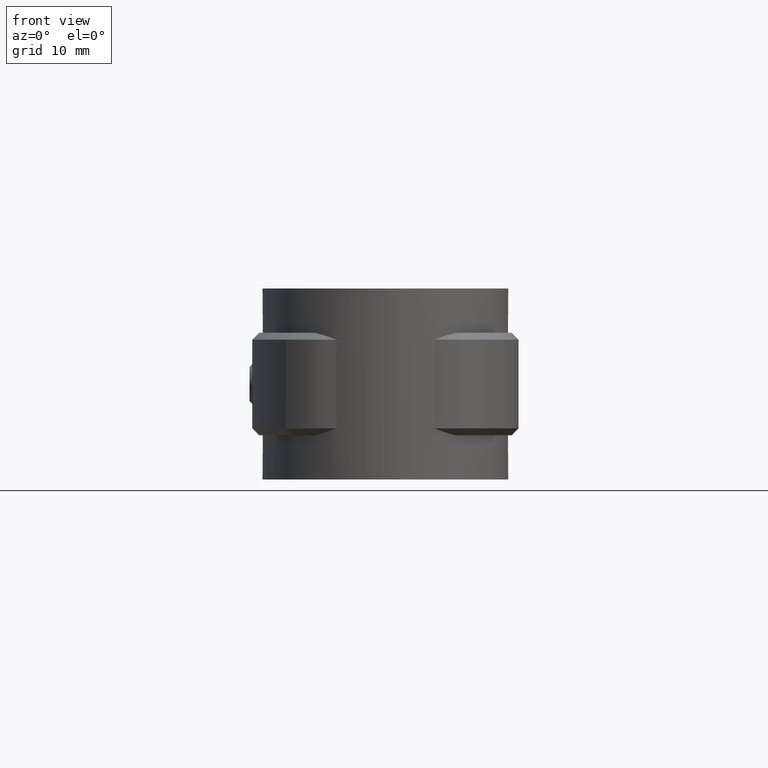
[diagram: clean part render]
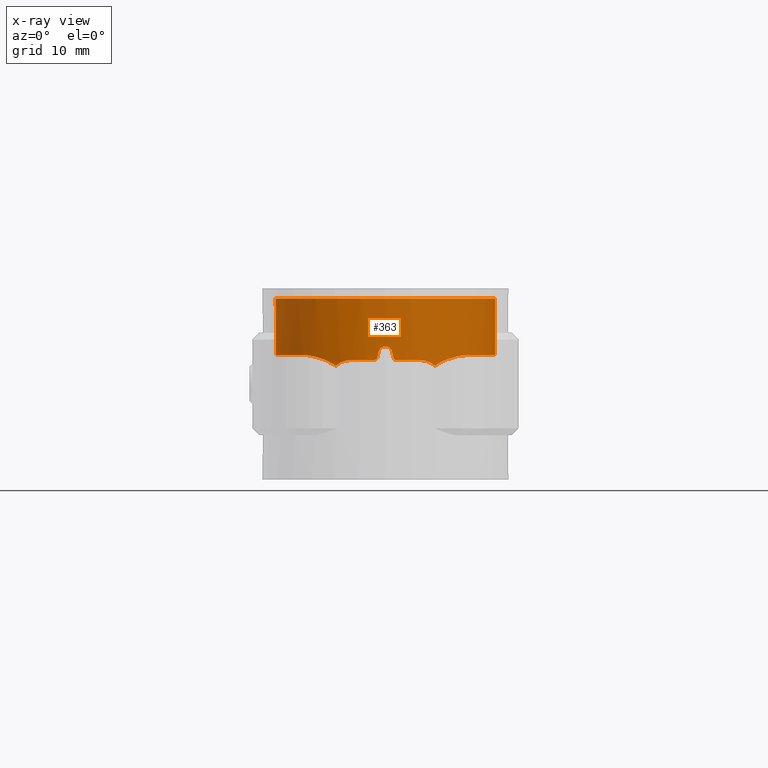
[diagram: x-ray — body ghosted, one internal face saturated and labeled with its STEP entity id]
A machine part, front view, then the same camera in x-ray: the body is ghosted and one INTERNAL B-rep face — a face not visible from any outside direction — is saturated and labeled: STEP entity #363.
In plain terms, the highlighted cylindrical surface (partial cylindrical patch) has radius 16.09 mm, axis along (0, 0, 1).
Its self-contained STEP definition (entity closure, byte-faithful):
#363 = ADVANCED_FACE( '', ( #689 ), #690, .T. );
#689 = FACE_OUTER_BOUND( '', #1386, .T. );
#690 = CYLINDRICAL_SURFACE( '', #1387, 16.0900000000000 );
#1386 = EDGE_LOOP( '', ( #2655, #2656, #2657, #2658, #2659, #2660, #2661, #2662, #2663, #2664, #2665, #2666, #2667, #2668, #2669, #2670 ) );
#1387 = AXIS2_PLACEMENT_3D( '', #2671, #2672, #2673 );
#2655 = ORIENTED_EDGE( '', *, *, #6454, .F. );
#2656 = ORIENTED_EDGE( '', *, *, #6455, .F. );
#2657 = ORIENTED_EDGE( '', *, *, #6456, .F. );
#2658 = ORIENTED_EDGE( '', *, *, #6457, .F. );
#2659 = ORIENTED_EDGE( '', *, *, #6458, .F. );
#2660 = ORIENTED_EDGE( '', *, *, #6459, .T. );
#2661 = ORIENTED_EDGE( '', *, *, #6460, .F. );
#2662 = ORIENTED_EDGE( '', *, *, #6461, .F. );
#2663 = ORIENTED_EDGE( '', *, *, #6462, .F. );
#2664 = ORIENTED_EDGE( '', *, *, #6463, .F. );
#2665 = ORIENTED_EDGE( '', *, *, #6464, .F. );
#2666 = ORIENTED_EDGE( '', *, *, #6465, .F. );
#2667 = ORIENTED_EDGE( '', *, *, #6466, .F. );
#2668 = ORIENTED_EDGE( '', *, *, #6467, .F. );
#2669 = ORIENTED_EDGE( '', *, *, #6468, .F. );
#2670 = ORIENTED_EDGE( '', *, *, #6469, .F. );
#2671 = CARTESIAN_POINT( '', ( 0.000000000000000, 0.000000000000000, 0.000000000000000 ) );
#2672 = DIRECTION( '', ( 0.000000000000000, 0.000000000000000, 1.00000000000000 ) );
#2673 = DIRECTION( '', ( 1.00000000000000, -6.12303176911189E-017, 0.000000000000000 ) );
#6454 = EDGE_CURVE( '', #7363, #7364, #7365, .T. );
#6455 = EDGE_CURVE( '', #7366, #7363, #7367, .T. );
#6456 = EDGE_CURVE( '', #7368, #7366, #7369, .T. );
#6457 = EDGE_CURVE( '', #7370, #7368, #7371, .T. );
#6458 = EDGE_CURVE( '', #7372, #7370, #7373, .F. );
#6459 = EDGE_CURVE( '', #7372, #7374, #7375, .T. );
#6460 = EDGE_CURVE( '', #7376, #7374, #7377, .T. );
#6461 = EDGE_CURVE( '', #7378, #7376, #7379, .T. );
#6462 = EDGE_CURVE( '', #7380, #7378, #7381, .T. );
#6463 = EDGE_CURVE( '', #7382, #7380, #7383, .T. );
#6464 = EDGE_CURVE( '', #7384, #7382, #7385, .T. );
#6465 = EDGE_CURVE( '', #7386, #7384, #7387, .T. );
#6466 = EDGE_CURVE( '', #7388, #7386, #7389, .T. );
#6467 = EDGE_CURVE( '', #7390, #7388, #7391, .T. );
#6468 = EDGE_CURVE( '', #7392, #7390, #7393, .T. );
#6469 = EDGE_CURVE( '', #7364, #7392, #7394, .T. );
#7363 = VERTEX_POINT( '', #8877 );
#7364 = VERTEX_POINT( '', #8878 );
#7365 = B_SPLINE_CURVE_WITH_KNOTS( '', 3, ( #8879, #8880, #8881, #8882, #8883, #8884, #8885, #8886, #8887, #8888 ), .UNSPECIFIED., .F., .F., ( 4, 2, 2, 2, 4 ), ( 0.00883853976691618, 0.00949434330834330, 0.0101501468497704, 0.0108059503911976, 0.0114617539326247 ), .UNSPECIFIED. );
#7366 = VERTEX_POINT( '', #8889 );
#7367 = B_SPLINE_CURVE_WITH_KNOTS( '', 3, ( #8890, #8891, #8892, #8893, #8894, #8895, #8896, #8897, #8898, #8899, #8900, #8901 ), .UNSPECIFIED., .F., .F., ( 4, 2, 2, 2, 2, 4 ), ( 4.66016712128000E-005, 0.00322408802680564, 0.00401845961570385, 0.00481283120460207, 0.00560720279350028, 0.00640157438239849 ), .UNSPECIFIED. );
#7368 = VERTEX_POINT( '', #8902 );
#7369 = B_SPLINE_CURVE_WITH_KNOTS( '', 3, ( #8903, #8904, #8905, #8906, #8907, #8908, #8909, #8910, #8911, #8912, #8913, #8914, #8915, #8916, #8917, #8918, #8919, #8920, #8921, #8922, #8923, #8924, #8925, #8926, #8927, #8928, #8929, #8930, #8931, #8932, #8933, #8934, #8935, #8936 ), .UNSPECIFIED., .F., .F., ( 4, 2, 2, 2, 2, 2, 2, 2, 2, 2, 2, 2, 2, 2, 2, 2, 4 ), ( 0.000000000000000, 0.00382526138376945, 0.00478157672971181, 0.00573789207565417, 0.00765052276753890, 0.00956315345942362, 0.0105194688053660, 0.0114757841513083, 0.0153010455350778, 0.0172136762269625, 0.0191263069188472, 0.0210389376107320, 0.0219952529566743, 0.0229515683026167, 0.0267768296863861, 0.0286894603782708, 0.0306020910701556 ), .UNSPECIFIED. );
#7370 = VERTEX_POINT( '', #8937 );
#7371 = LINE( '', #8938, #8939 );
#7372 = VERTEX_POINT( '', #8940 );
#7373 = CIRCLE( '', #8941, 16.0900000000000 );
#7374 = VERTEX_POINT( '', #8942 );
#7375 = LINE( '', #8943, #8944 );
#7376 = VERTEX_POINT( '', #8945 );
#7377 = B_SPLINE_CURVE_WITH_KNOTS( '', 3, ( #8946, #8947, #8948, #8949, #8950, #8951, #8952, #8953, #8954, #8955, #8956, #8957, #8958, #8959, #8960, #8961, #8962, #8963, #8964, #8965, #8966, #8967, #8968, #8969, #8970, #8971, #8972, #8973, #8974, #8975, #8976, #8977 ), .UNSPECIFIED., .F., .F., ( 4, 2, 2, 2, 2, 2, 2, 2, 2, 2, 2, 2, 2, 2, 2, 4 ), ( 0.000186769053910505, 0.00401259568005771, 0.00496905233659452, 0.00592550899313132, 0.00783842230620493, 0.00975133561927853, 0.0116642489323521, 0.0154900755584993, 0.0164465322150361, 0.0174029888715730, 0.0193159021846466, 0.0212288154977202, 0.0221852721542570, 0.0231417288107938, 0.0269675554369410, 0.0307933820630882 ), .UNSPECIFIED. );
#7378 = VERTEX_POINT( '', #8978 );
#7379 = B_SPLINE_CURVE_WITH_KNOTS( '', 3, ( #8979, #8980, #8981, #8982, #8983, #8984, #8985, #8986, #8987, #8988 ), .UNSPECIFIED., .F., .F., ( 4, 2, 2, 2, 4 ), ( 0.0130632303967494, 0.0146516333893562, 0.0162400363819630, 0.0178284393745698, 0.0194168423671766 ), .UNSPECIFIED. );
#7380 = VERTEX_POINT( '', #8989 );
#7381 = B_SPLINE_CURVE_WITH_KNOTS( '', 3, ( #8990, #8991, #8992, #8993, #8994, #8995 ), .UNSPECIFIED., .F., .F., ( 4, 2, 4 ), ( 3.87895961444886E-018, 0.00131543048050511, 0.00263086096101022 ), .UNSPECIFIED. );
#7382 = VERTEX_POINT( '', #8996 );
#7383 = CIRCLE( '', #8997, 16.0900000000000 );
#7384 = VERTEX_POINT( '', #8998 );
#7385 = B_SPLINE_CURVE_WITH_KNOTS( '', 3, ( #8999, #9000, #9001, #9002, #9003, #9004 ), .UNSPECIFIED., .F., .F., ( 4, 2, 4 ), ( 2.04566856771261E-018, 0.000336570482282133, 0.000673140964564264 ), .UNSPECIFIED. );
#7386 = VERTEX_POINT( '', #9005 );
#7387 = ELLIPSE( '', #9006, 73.2989636718306, 16.0900000000000 );
#7388 = VERTEX_POINT( '', #9007 );
#7389 = B_SPLINE_CURVE_WITH_KNOTS( '', 3, ( #9008, #9009, #9010, #9011, #9012, #9013, #9014, #9015, #9016, #9017 ), .UNSPECIFIED., .F., .F., ( 4, 2, 2, 2, 4 ), ( 0.000000000000000, 0.000671730620044260, 0.00134346124008852, 0.00201519186013278, 0.00268692248017704 ), .UNSPECIFIED. );
#7390 = VERTEX_POINT( '', #9018 );
#7391 = ELLIPSE( '', #9019, 73.2989262803470, 16.0900000000000 );
#7392 = VERTEX_POINT( '', #9020 );
#7393 = B_SPLINE_CURVE_WITH_KNOTS( '', 3, ( #9021, #9022, #9023, #9024, #9025, #9026 ), .UNSPECIFIED., .F., .F., ( 4, 2, 4 ), ( 8.20849171219253E-018, 0.000336555369048906, 0.000673110738097804 ), .UNSPECIFIED. );
#7394 = CIRCLE( '', #9027, 16.0900000000000 );
#8877 = CARTESIAN_POINT( '', ( 7.27066833708935, -14.3535877721233, -9.83653133997418 ) );
#8878 = CARTESIAN_POINT( '', ( 5.00000000000000, -15.2934005374868, -9.00000000000000 ) );
#8879 = CARTESIAN_POINT( '', ( 7.27066833708936, -14.3535877721233, -9.83653133997418 ) );
#8880 = CARTESIAN_POINT( '', ( 7.11468088235959, -14.4326016790358, -9.70354844449133 ) );
#8881 = CARTESIAN_POINT( '', ( 6.94839559996088, -14.5136466362885, -9.58523795773057 ) );
#8882 = CARTESIAN_POINT( '', ( 6.59454451108110, -14.6778105583897, -9.37757930778334 ) );
#8883 = CARTESIAN_POINT( '', ( 6.40812202928373, -14.7603195342937, -9.28927341071569 ) );
#8884 = CARTESIAN_POINT( '', ( 6.02577706039922, -14.9204916646540, -9.14748537619145 ) );
#8885 = CARTESIAN_POINT( '', ( 5.82850841832603, -14.9987969442466, -9.09317185074277 ) );
#8886 = CARTESIAN_POINT( '', ( 5.42089376559044, -15.1508854836746, -9.01923102233204 ) );
#8887 = CARTESIAN_POINT( '', ( 5.21111735840752, -15.2243781647679, -8.99999999999997 ) );
#8888 = CARTESIAN_POINT( '', ( 5.00000000000000, -15.2934005374868, -8.99999999999997 ) );
#8889 = CARTESIAN_POINT( '', ( 12.0752994393720, -10.6336843779332, -8.24973772499106 ) );
#8890 = CARTESIAN_POINT( '', ( 12.0752994393721, -10.6336843779332, -8.24973772499104 ) );
#8891 = CARTESIAN_POINT( '', ( 11.3676872205011, -11.4372280158803, -8.27590849637934 ) );
#8892 = CARTESIAN_POINT( '', ( 10.5960571636290, -12.1529155952117, -8.39653295992699 ) );
#8893 = CARTESIAN_POINT( '', ( 9.56309287778547, -12.9422934565629, -8.70632705366435 ) );
#8894 = CARTESIAN_POINT( '', ( 9.35320643317209, -13.0946725831758, -8.77661155504772 ) );
#8895 = CARTESIAN_POINT( '', ( 8.93422234923590, -13.3840424258339, -8.93389442264753 ) );
#8896 = CARTESIAN_POINT( '', ( 8.72430758693699, -13.5216713639647, -9.02111344830313 ) );
#8897 = CARTESIAN_POINT( '', ( 8.30504285032371, -13.7831564817656, -9.21526225288991 ) );
#8898 = CARTESIAN_POINT( '', ( 8.09567908633570, -13.9070144839353, -9.32216013748151 ) );
#8899 = CARTESIAN_POINT( '', ( 7.67959962396099, -14.1410332487049, -9.56001370555437 ) );
#8900 = CARTESIAN_POINT( '', ( 7.47170541415106, -14.2517544232784, -9.69181140429984 ) );
#8901 = CARTESIAN_POINT( '', ( 7.27066833708935, -14.3535877721233, -9.83653133997417 ) );
#8902 = CARTESIAN_POINT( '', ( 5.97970268724985, 14.9375786448841, -8.25156578356559 ) );
#8903 = CARTESIAN_POINT( '', ( 5.97970268724985, 14.9375786448841, -8.25156578356559 ) );
#8904 = CARTESIAN_POINT( '', ( 7.18050547387399, 14.4568820192303, -8.25350219987823 ) );
#8905 = CARTESIAN_POINT( '', ( 8.29987161202147, 13.8431951883344, -8.25389829040346 ) );
#8906 = CARTESIAN_POINT( '', ( 9.60083818657829, 12.9156540669661, -8.25214396542247 ) );
#8907 = CARTESIAN_POINT( '', ( 9.85605266201049, 12.7220151359708, -8.25171924638518 ) );
#8908 = CARTESIAN_POINT( '', ( 10.3563435950208, 12.3181812999350, -8.25087317941542 ) );
#8909 = CARTESIAN_POINT( '', ( 10.6022202598489, 12.1072245214547, -8.25045088744087 ) );
#8910 = CARTESIAN_POINT( '', ( 11.3166753252090, 11.4558456601365, -8.24954812822931 ) );
#8911 = CARTESIAN_POINT( '', ( 11.7627432138569, 10.9969429517159, -8.24976104864157 ) );
#8912 = CARTESIAN_POINT( '', ( 12.5962888143308, 10.0313703104011, -8.25127554661886 ) );
#8913 = CARTESIAN_POINT( '', ( 12.9837623436285, 9.52469677703626, -8.25228402271894 ) );
#8914 = CARTESIAN_POINT( '', ( 13.5205286754012, 8.72845133229439, -8.25307799962964 ) );
#8915 = CARTESIAN_POINT( '', ( 13.6920241940315, 8.45698129331811, -8.25323293463433 ) );
#8916 = CARTESIAN_POINT( '', ( 14.0198345049473, 7.90166435501812, -8.25326623740129 ) );
#8917 = CARTESIAN_POINT( '', ( 14.1759529548510, 7.61798638523473, -8.25314336120227 ) );
#8918 = CARTESIAN_POINT( '', ( 14.9080974833175, 6.18780003944959, -8.25194833719442 ) );
#8919 = CARTESIAN_POINT( '', ( 15.3498494021492, 4.99164914601848, -8.24895859032316 ) );
#8920 = CARTESIAN_POINT( '', ( 15.7976695305431, 3.11982721799642, -8.25060726814773 ) );
#8921 = CARTESIAN_POINT( '', ( 15.9106798545290, 2.47979560799069, -8.25165939629464 ) );
#8922 = CARTESIAN_POINT( '', ( 16.0575415685640, 1.20601760541250, -8.25297087091601 ) );
#8923 = CARTESIAN_POINT( '', ( 16.0925800615113, 0.568772529279288, -8.25323430601314 ) );
#8924 = CARTESIAN_POINT( '', ( 16.0871255570230, -0.706418104801140, -8.25267164489872 ) );
#8925 = CARTESIAN_POINT( '', ( 16.0466352159797, -1.34436363801908, -8.25184491845091 ) );
#8926 = CARTESIAN_POINT( '', ( 15.9277477146231, -2.30182136053254, -8.25061447161764 ) );
#8927 = CARTESIAN_POINT( '', ( 15.8781754717456, -2.62209984160318, -8.25021661072282 ) );
#8928 = CARTESIAN_POINT( '', ( 15.7605048958343, -3.25551060807054, -8.24972809169689 ) );
#8929 = CARTESIAN_POINT( '', ( 15.6924246523377, -3.56906902614822, -8.24966631763209 ) );
#8930 = CARTESIAN_POINT( '', ( 15.3067434871994, -5.12144771919515, -8.25057836017609 ) );
#8931 = CARTESIAN_POINT( '', ( 14.8552286034273, -6.31468423616167, -8.25368184332010 ) );
#8932 = CARTESIAN_POINT( '', ( 13.9580882294293, -8.02970182790706, -8.25323897184126 ) );
#8933 = CARTESIAN_POINT( '', ( 13.6246180457725, -8.58314374422464, -8.25235669390436 ) );
#8934 = CARTESIAN_POINT( '', ( 12.8971606941718, -9.64177470468598, -8.25038022791526 ) );
#8935 = CARTESIAN_POINT( '', ( 12.5021416699676, -10.1489749013675, -8.24952348472623 ) );
#8936 = CARTESIAN_POINT( '', ( 12.0752992766545, -10.6336845627105, -8.24973777531009 ) );
#8937 = CARTESIAN_POINT( '', ( 5.97970268724986, 14.9375786448841, 0.000000000000000 ) );
#8938 = CARTESIAN_POINT( '', ( 5.97970268724985, 14.9375786448841, 0.000000000000000 ) );
#8939 = VECTOR( '', #12443, 1000.00000000000 );
#8940 = CARTESIAN_POINT( '', ( -5.97970268724987, 14.9375786448841, 0.000000000000000 ) );
#8941 = AXIS2_PLACEMENT_3D( '', #12444, #12445, #12446 );
#8942 = CARTESIAN_POINT( '', ( -5.97970268724986, 14.9375786448841, -8.25156578356559 ) );
#8943 = CARTESIAN_POINT( '', ( -5.97970268724986, 14.9375786448841, 0.000000000000000 ) );
#8944 = VECTOR( '', #12447, 1000.00000000000 );
#8945 = CARTESIAN_POINT( '', ( -12.0752994392954, -10.6336843780203, -8.24973772499387 ) );
#8946 = CARTESIAN_POINT( '', ( -12.0752992766544, -10.6336845627104, -8.24973777531000 ) );
#8947 = CARTESIAN_POINT( '', ( -12.9284618955380, -9.66485819834748, -8.24930945628962 ) );
#8948 = CARTESIAN_POINT( '', ( -13.6507783494505, -8.61288705624017, -8.25305525001528 ) );
#8949 = CARTESIAN_POINT( '', ( -14.3943769509658, -7.19669050712475, -8.25346196651496 ) );
#8950 = CARTESIAN_POINT( '', ( -14.5350243347660, -6.90832130956362, -8.25337985265656 ) );
#8951 = CARTESIAN_POINT( '', ( -14.7998434967650, -6.32111289249538, -8.25294153403403 ) );
#8952 = CARTESIAN_POINT( '', ( -14.9241312029666, -6.02178223728128, -8.25258457029921 ) );
#8953 = CARTESIAN_POINT( '', ( -15.2672321021205, -5.11991580461685, -8.25133393879110 ) );
#8954 = CARTESIAN_POINT( '', ( -15.4582051836619, -4.50982899136460, -8.25022888249409 ) );
#8955 = CARTESIAN_POINT( '', ( -15.7666054911190, -3.27243278295538, -8.24948236692771 ) );
#8956 = CARTESIAN_POINT( '', ( -15.8840300053952, -2.64512271590314, -8.25017535030161 ) );
#8957 = CARTESIAN_POINT( '', ( -16.0441254593218, -1.37299731974332, -8.25180614052843 ) );
#8958 = CARTESIAN_POINT( '', ( -16.0864802714570, -0.724469301782898, -8.25265640732406 ) );
#8959 = CARTESIAN_POINT( '', ( -16.0963985416827, 1.20019463426291, -8.25352722102710 ) );
#8960 = CARTESIAN_POINT( '', ( -15.9516064969119, 2.46703260385641, -8.25121238325534 ) );
#8961 = CARTESIAN_POINT( '', ( -15.5804140856136, 4.03014151762851, -8.24979833248211 ) );
#8962 = CARTESIAN_POINT( '', ( -15.4962075478899, 4.34276630603208, -8.24966087466260 ) );
#8963 = CARTESIAN_POINT( '', ( -15.3097799576601, 4.96011141045425, -8.24991170484006 ) );
#8964 = CARTESIAN_POINT( '', ( -15.2077228564156, 5.26457282488196, -8.25024760351951 ) );
#8965 = CARTESIAN_POINT( '', ( -14.8755959483698, 6.16559739238415, -8.25143051236088 ) );
#8966 = CARTESIAN_POINT( '', ( -14.6196602804780, 6.74984362764150, -8.25241075995679 ) );
#8967 = CARTESIAN_POINT( '', ( -14.0395325449838, 7.88583423821078, -8.25337419565592 ) );
#8968 = CARTESIAN_POINT( '', ( -13.7153453837679, 8.43758095083974, -8.25335565092940 ) );
#8969 = CARTESIAN_POINT( '', ( -13.1762447646382, 9.24004960629810, -8.25257369171479 ) );
#8970 = CARTESIAN_POINT( '', ( -12.9875535866865, 9.50341527307774, -8.25219764358065 ) );
#8971 = CARTESIAN_POINT( '', ( -12.5975800578835, 10.0146106616702, -8.25136763677477 ) );
#8972 = CARTESIAN_POINT( '', ( -12.3957039546946, 10.2633687854208, -8.25091328816404 ) );
#8973 = CARTESIAN_POINT( '', ( -11.3524921813337, 11.4735725474019, -8.24900707975935 ) );
#8974 = CARTESIAN_POINT( '', ( -10.4111145261217, 12.3356989375069, -8.25103653700167 ) );
#8975 = CARTESIAN_POINT( '', ( -8.30708213447799, 13.8402731318377, -8.25390309789517 ) );
#8976 = CARTESIAN_POINT( '', ( -7.18047874180030, 14.4568927204193, -8.25350215677005 ) );
#8977 = CARTESIAN_POINT( '', ( -5.97970268724985, 14.9375786448841, -8.25156578356559 ) );
#8978 = CARTESIAN_POINT( '', ( -7.27066833708941, -14.3535877721232, -9.83653133997413 ) );
#8979 = CARTESIAN_POINT( '', ( -7.27066833708936, -14.3535877721233, -9.83653133997417 ) );
#8980 = CARTESIAN_POINT( '', ( -7.66980083793615, -14.1514111398916, -9.54920906742465 ) );
#8981 = CARTESIAN_POINT( '', ( -8.09497458673786, -13.9141569228892, -9.31255946810993 ) );
#8982 = CARTESIAN_POINT( '', ( -8.93372100895401, -13.3910793205361, -8.92411948674560 ) );
#8983 = CARTESIAN_POINT( '', ( -9.35103166483375, -13.1039437067160, -8.77029891922618 ) );
#8984 = CARTESIAN_POINT( '', ( -10.1725972525750, -12.4769146427476, -8.52316594471433 ) );
#8985 = CARTESIAN_POINT( '', ( -10.5780401014406, -12.1355779886713, -8.43012500259657 ) );
#8986 = CARTESIAN_POINT( '', ( -11.3512985152492, -11.4155686465683, -8.30041542275444 ) );
#8987 = CARTESIAN_POINT( '', ( -11.7218002835019, -11.0351076294539, -8.26281175811827 ) );
#8988 = CARTESIAN_POINT( '', ( -12.0752994392952, -10.6336843780205, -8.24973772499389 ) );
#8989 = CARTESIAN_POINT( '', ( -5.00000000000005, -15.2934005374867, -9.00000000000000 ) );
#8990 = CARTESIAN_POINT( '', ( -5.00000000000005, -15.2934005374867, -8.99999999999997 ) );
#8991 = CARTESIAN_POINT( '', ( -5.42302685213826, -15.1550968125888, -8.99999999999997 ) );
#8992 = CARTESIAN_POINT( '', ( -5.82769790999977, -15.0034348304715, -9.07418868764558 ) );
#8993 = CARTESIAN_POINT( '', ( -6.60384651881436, -14.6783626743027, -9.36169738199762 ) );
#8994 = CARTESIAN_POINT( '', ( -6.95499605076939, -14.5134884557350, -9.56741345013325 ) );
#8995 = CARTESIAN_POINT( '', ( -7.27066833708941, -14.3535877721232, -9.83653133997413 ) );
#8996 = CARTESIAN_POINT( '', ( -1.65000000000003, -16.0051741633760, -9.00000000000000 ) );
#8997 = AXIS2_PLACEMENT_3D( '', #12448, #12449, #12450 );
#8998 = CARTESIAN_POINT( '', ( -1.16219512100914, -16.0479719123851, -8.60975609337373 ) );
#8999 = CARTESIAN_POINT( '', ( -1.16219512100915, -16.0479719123851, -8.60975609337372 ) );
#9000 = CARTESIAN_POINT( '', ( -1.18717415572043, -16.0461629291424, -8.72077402987360 ) );
#9001 = CARTESIAN_POINT( '', ( -1.24933708052126, -16.0416701521405, -8.81992892434562 ) );
#9002 = CARTESIAN_POINT( '', ( -1.42675870956230, -16.0268644467821, -8.96157189897337 ) );
#9003 = CARTESIAN_POINT( '', ( -1.53680578638620, -16.0168435429502, -8.99999999999994 ) );
#9004 = CARTESIAN_POINT( '', ( -1.65000000000003, -16.0051741633760, -8.99999999999994 ) );
#9005 = CARTESIAN_POINT( '', ( -0.975610000000025, -16.0603949244064, -7.78048800000004 ) );
#9006 = AXIS2_PLACEMENT_3D( '', #12451, #12452, #12453 );
#9007 = CARTESIAN_POINT( '', ( 0.975609757981813, -16.0603949391082, -7.78048781325256 ) );
#9008 = CARTESIAN_POINT( '', ( 0.975609757981816, -16.0603949391082, -7.78048781325256 ) );
#9009 = CARTESIAN_POINT( '', ( 0.925754360704220, -16.0634234706142, -7.55890835993988 ) );
#9010 = CARTESIAN_POINT( '', ( 0.801993756409708, -16.0709793514082, -7.36098173594529 ) );
#9011 = CARTESIAN_POINT( '', ( 0.447458259411136, -16.0847552796053, -7.07733026727309 ) );
#9012 = CARTESIAN_POINT( '', ( 0.227136479405867, -16.0900000248275, -6.99999961980643 ) );
#9013 = CARTESIAN_POINT( '', ( -0.227139996869687, -16.0899999751724, -7.00000037332922 ) );
#9014 = CARTESIAN_POINT( '', ( -0.447531592522920, -16.0847528103894, -7.07737603096165 ) );
#9015 = CARTESIAN_POINT( '', ( -0.801989314475959, -16.0709791436957, -7.36099077211950 ) );
#9016 = CARTESIAN_POINT( '', ( -0.925754630683115, -16.0634234549680, -7.55890847290776 ) );
#9017 = CARTESIAN_POINT( '', ( -0.975610000000025, -16.0603949244064, -7.78048800000004 ) );
#9018 = CARTESIAN_POINT( '', ( 1.16219499999999, -16.0479719211486, -8.60975599999999 ) );
#9019 = AXIS2_PLACEMENT_3D( '', #12454, #12455, #12456 );
#9020 = CARTESIAN_POINT( '', ( 1.64999999999995, -16.0051741633761, -9.00000000000000 ) );
#9021 = CARTESIAN_POINT( '', ( 1.64999999999995, -16.0051741633761, -8.99999999999995 ) );
#9022 = CARTESIAN_POINT( '', ( 1.53680573434202, -16.0168435483155, -9.00000000048577 ) );
#9023 = CARTESIAN_POINT( '', ( 1.42675685891321, -16.0268645621218, -8.96156781974292 ) );
#9024 = CARTESIAN_POINT( '', ( 1.24935296716543, -16.0416688655042, -8.81994428070039 ) );
#9025 = CARTESIAN_POINT( '', ( 1.18717405312007, -16.0461629367621, -8.72077401609191 ) );
#9026 = CARTESIAN_POINT( '', ( 1.16219499999999, -16.0479719211486, -8.60975599999999 ) );
#9027 = AXIS2_PLACEMENT_3D( '', #12457, #12458, #12459 );
#12443 = DIRECTION( '', ( 0.000000000000000, 0.000000000000000, -1.00000000000000 ) );
#12444 = CARTESIAN_POINT( '', ( 0.000000000000000, 0.000000000000000, 0.000000000000000 ) );
#12445 = DIRECTION( '', ( 0.000000000000000, 0.000000000000000, -1.00000000000000 ) );
#12446 = DIRECTION( '', ( -1.00000000000000, 0.000000000000000, 0.000000000000000 ) );
#12447 = DIRECTION( '', ( 0.000000000000000, 0.000000000000000, -1.00000000000000 ) );
#12448 = CARTESIAN_POINT( '', ( 0.000000000000000, 0.000000000000000, -9.00000000000000 ) );
#12449 = DIRECTION( '', ( 6.12303176911189E-017, -3.05720745347993E-016, -1.00000000000000 ) );
#12450 = DIRECTION( '', ( 0.000000000000000, 1.00000000000000, -3.05720745347993E-016 ) );
#12451 = CARTESIAN_POINT( '', ( 0.000000000000000, 0.000000000000000, -3.44443890776447 ) );
#12452 = DIRECTION( '', ( 0.975609806487711, -1.18038009681476E-016, -0.219511971165610 ) );
#12453 = DIRECTION( '', ( -0.219511971165610, 2.65585237103421E-017, -0.975609806487711 ) );
#12454 = CARTESIAN_POINT( '', ( 0.000000000000000, 0.000000000000000, -3.44444212055030 ) );
#12455 = DIRECTION( '', ( -0.975609781292647, -1.61807527429124E-017, -0.219512083143762 ) );
#12456 = DIRECTION( '', ( 0.219512083143762, 3.64066741594651E-018, -0.975609781292647 ) );
#12457 = CARTESIAN_POINT( '', ( 0.000000000000000, 0.000000000000000, -9.00000000000000 ) );
#12458 = DIRECTION( '', ( 6.12303176911189E-017, -3.05720745347993E-016, -1.00000000000000 ) );
#12459 = DIRECTION( '', ( 0.000000000000000, 1.00000000000000, -3.05720745347993E-016 ) );